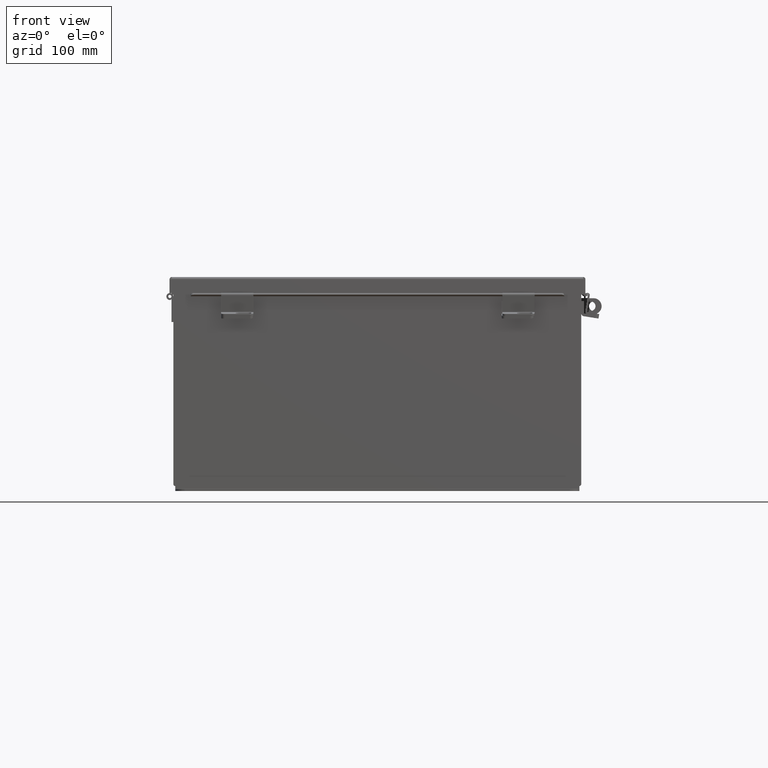
[diagram: clean part render]
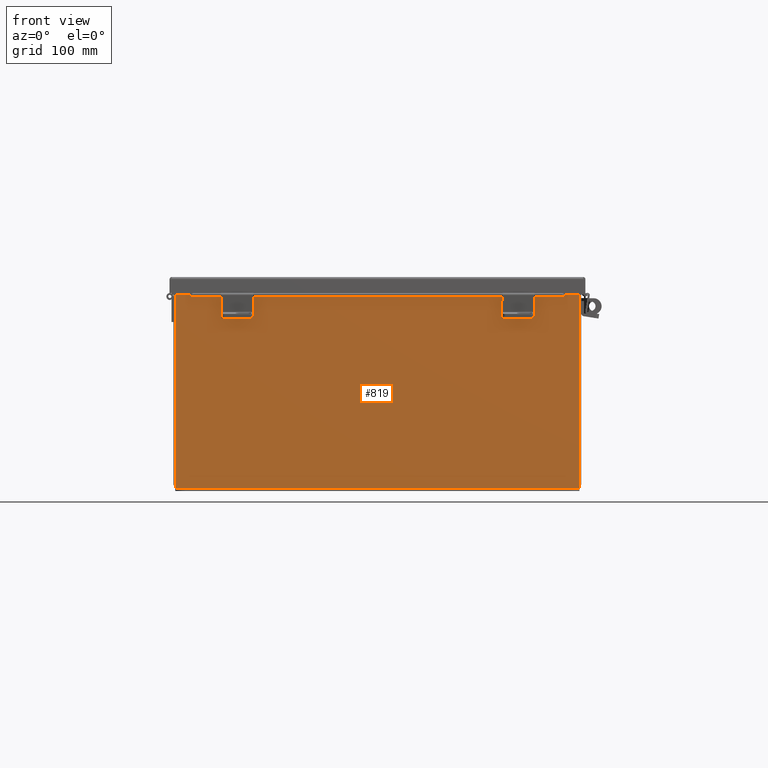
[diagram: same view with one face highlighted and labeled with its STEP entity id]
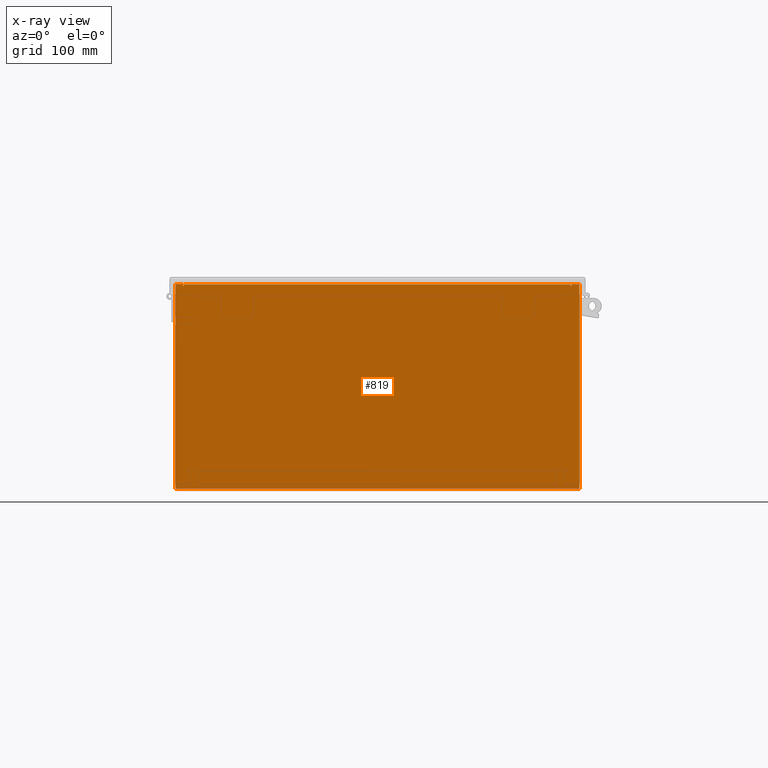
[diagram: x-ray of the same camera — body ghosted, the highlighted face saturated]
A machine part, front view. The second image highlights one B-rep face of the part: STEP entity #819.
The next image is the same camera in x-ray: the body ghosted, the highlighted face saturated — about 0% of this face is hidden behind the body in this view.
In plain terms, the highlighted planar face has unit normal (-0, 1, -0).
Its self-contained STEP definition (entity closure, byte-faithful):
#263 = ORIENTED_EDGE ( 'NONE', *, *, #5548, .F. ) ;
#291 = DIRECTION ( 'NONE',  ( 1.000000000000000000, 4.910036603141682400E-031, 0.0000000000000000000 ) ) ;
#819 = ADVANCED_FACE ( 'NONE', ( #9614 ), #8293, .F. ) ;
#1389 = CIRCLE ( 'NONE', #9594, 0.01867500000000003900 ) ;
#1400 = ORIENTED_EDGE ( 'NONE', *, *, #3214, .T. ) ;
#1494 = LINE ( 'NONE', #12370, #15201 ) ;
#1604 = DIRECTION ( 'NONE',  ( 4.910036603141682400E-031, 1.000000000000000000, -0.0000000000000000000 ) ) ;
#1636 = VECTOR ( 'NONE', #20996, 39.37007874015748100 ) ;
#1669 = DIRECTION ( 'NONE',  ( 0.0000000000000000000, 0.0000000000000000000, 1.000000000000000000 ) ) ;
#1739 = CARTESIAN_POINT ( 'NONE',  ( 7.582300000000008000, 0.0000000000000000000, 0.0000000000000000000 ) ) ;
#1978 = VERTEX_POINT ( 'NONE', #2726 ) ;
#2726 = CARTESIAN_POINT ( 'NONE',  ( 7.582300000000008000, 0.0000000000000000000, 3.912299999999998800 ) ) ;
#2868 = CARTESIAN_POINT ( 'NONE',  ( -7.582299999999991200, 0.0000000000000000000, 0.0000000000000000000 ) ) ;
#3048 = VECTOR ( 'NONE', #1669, 39.37007874015748100 ) ;
#3214 = EDGE_CURVE ( 'NONE', #9407, #17097, #22411, .T. ) ;
#3450 = DIRECTION ( 'NONE',  ( 0.0000000000000000000, 0.0000000000000000000, 1.000000000000000000 ) ) ;
#3705 = VERTEX_POINT ( 'NONE', #21654 ) ;
#3756 = VECTOR ( 'NONE', #15735, 39.37007874015748100 ) ;
#3842 = LINE ( 'NONE', #8850, #11369 ) ;
#4332 = ORIENTED_EDGE ( 'NONE', *, *, #20930, .T. ) ;
#4700 = DIRECTION ( 'NONE',  ( -1.391918066728283300E-016, 0.0000000000000000000, -1.000000000000000000 ) ) ;
#4925 = VERTEX_POINT ( 'NONE', #13773 ) ;
#5172 = CARTESIAN_POINT ( 'NONE',  ( 7.600975000000008000, 0.0000000000000000000, 3.874949999999998300 ) ) ;
#5284 = VERTEX_POINT ( 'NONE', #13859 ) ;
#5548 = EDGE_CURVE ( 'NONE', #15670, #20493, #10878, .T. ) ;
#5692 = LINE ( 'NONE', #8610, #14345 ) ;
#5803 = CARTESIAN_POINT ( 'NONE',  ( -7.582299999999991200, 2.185478394931410600E-015, 3.912299999999998800 ) ) ;
#5817 = EDGE_CURVE ( 'NONE', #4925, #3705, #19294, .T. ) ;
#5926 = VERTEX_POINT ( 'NONE', #15176 ) ;
#6032 = EDGE_CURVE ( 'NONE', #12488, #17097, #11921, .T. ) ;
#6251 = VECTOR ( 'NONE', #15516, 39.37007874015748100 ) ;
#6898 = DIRECTION ( 'NONE',  ( 0.0000000000000000000, 0.0000000000000000000, -1.000000000000000000 ) ) ;
#6970 = CARTESIAN_POINT ( 'NONE',  ( 7.925300000000009800, 0.0000000000000000000, 3.925299999999999600 ) ) ;
#7029 = CARTESIAN_POINT ( 'NONE',  ( -7.619649999999991200, 0.0000000000000000000, 0.0000000000000000000 ) ) ;
#7039 = DIRECTION ( 'NONE',  ( 0.0000000000000000000, 0.0000000000000000000, -1.000000000000000000 ) ) ;
#7137 = CARTESIAN_POINT ( 'NONE',  ( -7.925299999999990200, -1.748382715945128500E-014, 3.925299999999999600 ) ) ;
#7162 = CARTESIAN_POINT ( 'NONE',  ( 7.925300000000008900, 1.748382715945128500E-014, -4.099299999999999500 ) ) ;
#7800 = EDGE_CURVE ( 'NONE', #11676, #1978, #1494, .T. ) ;
#8293 = PLANE ( 'NONE',  #9617 ) ;
#8533 = VECTOR ( 'NONE', #4700, 39.37007874015748100 ) ;
#8610 = CARTESIAN_POINT ( 'NONE',  ( -7.925299999999990200, -1.748382715945128500E-014, 3.925299999999999600 ) ) ;
#8850 = CARTESIAN_POINT ( 'NONE',  ( -7.925299999999990200, -1.748382715945128500E-014, 3.925299999999999600 ) ) ;
#8986 = CARTESIAN_POINT ( 'NONE',  ( 0.0000000000000000000, 0.0000000000000000000, 0.0000000000000000000 ) ) ;
#9050 = CARTESIAN_POINT ( 'NONE',  ( 7.619650000000007100, 0.0000000000000000000, 3.874949999999998300 ) ) ;
#9407 = VERTEX_POINT ( 'NONE', #17816 ) ;
#9594 = AXIS2_PLACEMENT_3D ( 'NONE', #5172, #17249, #6898 ) ;
#9614 = FACE_OUTER_BOUND ( 'NONE', #20231, .T. ) ;
#9617 = AXIS2_PLACEMENT_3D ( 'NONE', #8986, #11937, #7039 ) ;
#9959 = DIRECTION ( 'NONE',  ( 1.000000000000000000, 8.208677865577687000E-017, -0.0000000000000000000 ) ) ;
#10015 = EDGE_CURVE ( 'NONE', #12488, #5284, #5692, .T. ) ;
#10159 = EDGE_CURVE ( 'NONE', #14043, #1978, #21988, .T. ) ;
#10210 = LINE ( 'NONE', #7137, #1636 ) ;
#10256 = LINE ( 'NONE', #2868, #14319 ) ;
#10878 = LINE ( 'NONE', #15684, #6251 ) ;
#11035 = ORIENTED_EDGE ( 'NONE', *, *, #7800, .T. ) ;
#11219 = EDGE_CURVE ( 'NONE', #11676, #4925, #10256, .T. ) ;
#11369 = VECTOR ( 'NONE', #291, 39.37007874015748100 ) ;
#11676 = VERTEX_POINT ( 'NONE', #5803 ) ;
#11906 = DIRECTION ( 'NONE',  ( 1.000000000000000000, 4.910036603141682400E-031, -0.0000000000000000000 ) ) ;
#11921 = LINE ( 'NONE', #17034, #20661 ) ;
#11937 = DIRECTION ( 'NONE',  ( -4.910036603141682400E-031, -1.000000000000000000, -0.0000000000000000000 ) ) ;
#12358 = LINE ( 'NONE', #7029, #3756 ) ;
#12370 = CARTESIAN_POINT ( 'NONE',  ( -7.582299999999991200, 2.185478394931410600E-015, 3.912299999999998800 ) ) ;
#12488 = VERTEX_POINT ( 'NONE', #20637 ) ;
#13045 = ORIENTED_EDGE ( 'NONE', *, *, #10159, .F. ) ;
#13262 = ORIENTED_EDGE ( 'NONE', *, *, #15675, .F. ) ;
#13773 = CARTESIAN_POINT ( 'NONE',  ( -7.582299999999991200, 0.0000000000000000000, 3.874949999999998300 ) ) ;
#13859 = CARTESIAN_POINT ( 'NONE',  ( -7.925299999999990200, -1.748382715945128500E-014, 3.925299999999999600 ) ) ;
#14043 = VERTEX_POINT ( 'NONE', #14236 ) ;
#14129 = AXIS2_PLACEMENT_3D ( 'NONE', #21335, #1604, #21210 ) ;
#14236 = CARTESIAN_POINT ( 'NONE',  ( 7.582300000000008000, 0.0000000000000000000, 3.874949999999998300 ) ) ;
#14319 = VECTOR ( 'NONE', #20592, 39.37007874015748100 ) ;
#14345 = VECTOR ( 'NONE', #3450, 39.37007874015748100 ) ;
#14450 = EDGE_CURVE ( 'NONE', #15670, #9407, #3842, .T. ) ;
#15176 = CARTESIAN_POINT ( 'NONE',  ( -7.619649999999991200, 0.0000000000000000000, 3.925299999999999600 ) ) ;
#15201 = VECTOR ( 'NONE', #11906, 39.37007874015748100 ) ;
#15305 = ORIENTED_EDGE ( 'NONE', *, *, #10015, .T. ) ;
#15441 = CARTESIAN_POINT ( 'NONE',  ( 7.619650000000010700, 0.0000000000000000000, 3.925299999999999600 ) ) ;
#15516 = DIRECTION ( 'NONE',  ( -4.340572780399910900E-014, 0.0000000000000000000, -1.000000000000000000 ) ) ;
#15670 = VERTEX_POINT ( 'NONE', #15441 ) ;
#15675 = EDGE_CURVE ( 'NONE', #20493, #14043, #1389, .T. ) ;
#15684 = CARTESIAN_POINT ( 'NONE',  ( 7.619649999999840200, 0.0000000000000000000, -3.305536072333758300E-013 ) ) ;
#15735 = DIRECTION ( 'NONE',  ( 0.0000000000000000000, 0.0000000000000000000, 1.000000000000000000 ) ) ;
#15878 = ORIENTED_EDGE ( 'NONE', *, *, #16239, .F. ) ;
#16239 = EDGE_CURVE ( 'NONE', #3705, #5926, #12358, .T. ) ;
#17034 = CARTESIAN_POINT ( 'NONE',  ( -7.925299999999991100, -2.185478394931410600E-015, -4.099299999999999500 ) ) ;
#17084 = ORIENTED_EDGE ( 'NONE', *, *, #11219, .F. ) ;
#17097 = VERTEX_POINT ( 'NONE', #7162 ) ;
#17133 = ORIENTED_EDGE ( 'NONE', *, *, #5817, .F. ) ;
#17249 = DIRECTION ( 'NONE',  ( 4.910036603141682400E-031, 1.000000000000000000, -0.0000000000000000000 ) ) ;
#17816 = CARTESIAN_POINT ( 'NONE',  ( 7.925300000000009800, 0.0000000000000000000, 3.925299999999999600 ) ) ;
#19294 = CIRCLE ( 'NONE', #14129, 0.01867500000000003900 ) ;
#20110 = ORIENTED_EDGE ( 'NONE', *, *, #6032, .F. ) ;
#20231 = EDGE_LOOP ( 'NONE', ( #15878, #17133, #17084, #11035, #13045, #13262, #263, #20823, #1400, #20110, #15305, #4332 ) ) ;
#20493 = VERTEX_POINT ( 'NONE', #9050 ) ;
#20592 = DIRECTION ( 'NONE',  ( 0.0000000000000000000, 0.0000000000000000000, -1.000000000000000000 ) ) ;
#20637 = CARTESIAN_POINT ( 'NONE',  ( -7.925299999999991100, -2.185478394931410600E-015, -4.099299999999999500 ) ) ;
#20661 = VECTOR ( 'NONE', #9959, 39.37007874015748100 ) ;
#20823 = ORIENTED_EDGE ( 'NONE', *, *, #14450, .T. ) ;
#20930 = EDGE_CURVE ( 'NONE', #5284, #5926, #10210, .T. ) ;
#20996 = DIRECTION ( 'NONE',  ( 1.000000000000000000, 4.910036603141682400E-031, 0.0000000000000000000 ) ) ;
#21210 = DIRECTION ( 'NONE',  ( 0.0000000000000000000, 0.0000000000000000000, -1.000000000000000000 ) ) ;
#21335 = CARTESIAN_POINT ( 'NONE',  ( -7.600974999999990300, 0.0000000000000000000, 3.874949999999998300 ) ) ;
#21654 = CARTESIAN_POINT ( 'NONE',  ( -7.619649999999990300, 0.0000000000000000000, 3.874949999999998300 ) ) ;
#21988 = LINE ( 'NONE', #1739, #3048 ) ;
#22411 = LINE ( 'NONE', #6970, #8533 ) ;